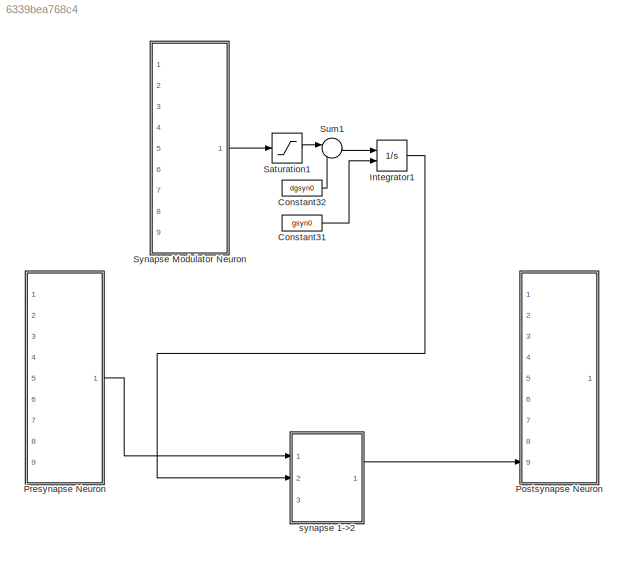
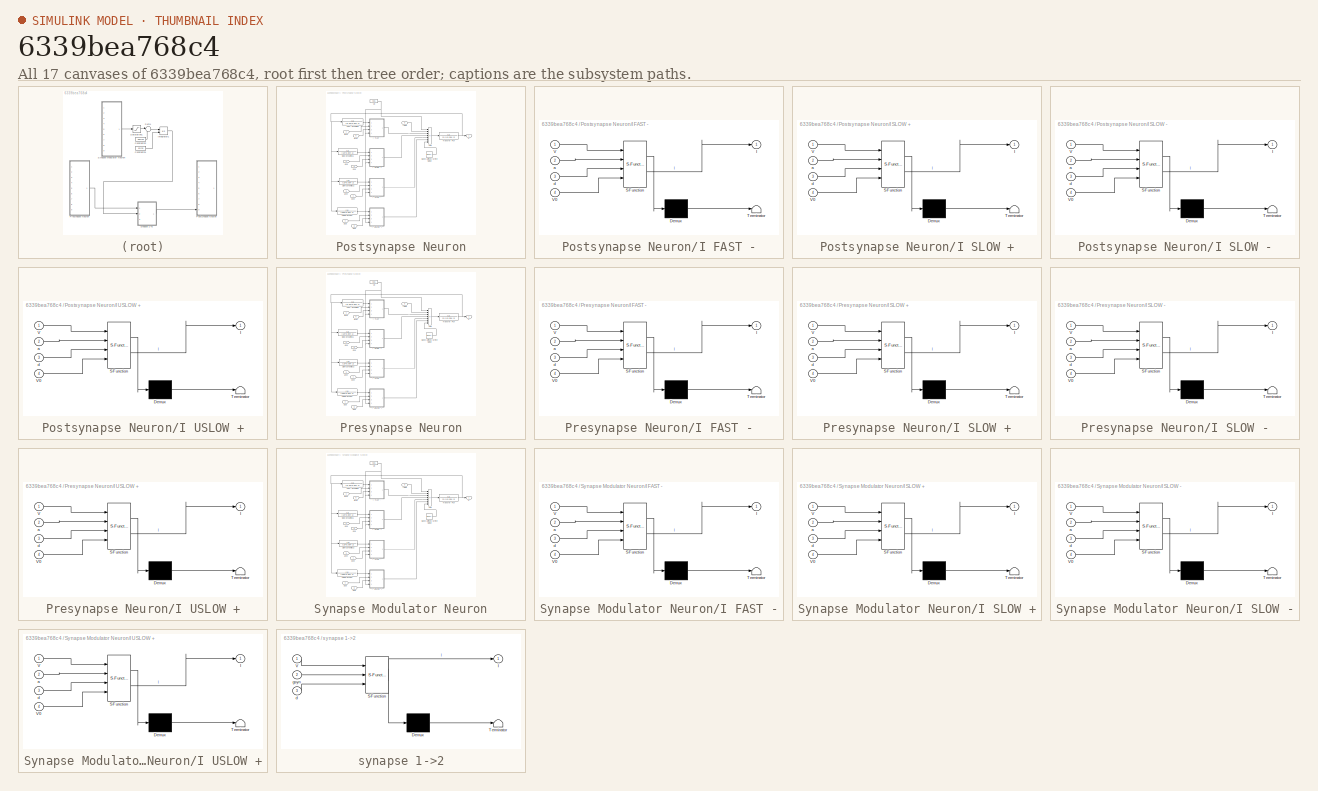
[diagram: thumbnail index - all 17 canvases of the model, root first then tree order]
MODEL slx_6339bea768c4
KIND model
CONFIG AbsTol = auto
CONFIG EnableMultiTasking = off
CONFIG FixedStep = auto
CONFIG MaxStep = auto
CONFIG MinStep = auto
CONFIG RelTol = 1e-3
CONFIG SampleTimeConstraint = Unconstrained
CONFIG SolverName = VariableStepAuto
CONFIG StartTime = 0.0
CONFIG StopTime = 10.0
BLOCK [Constant] Constant31
  Value = gsyn0
BLOCK [Constant] Constant32
  Value = dgsyn0
BLOCK [Integrator] Integrator1
  InitialCondition = gsm0
  InitialConditionSource = external
  Ports = [2, 1]
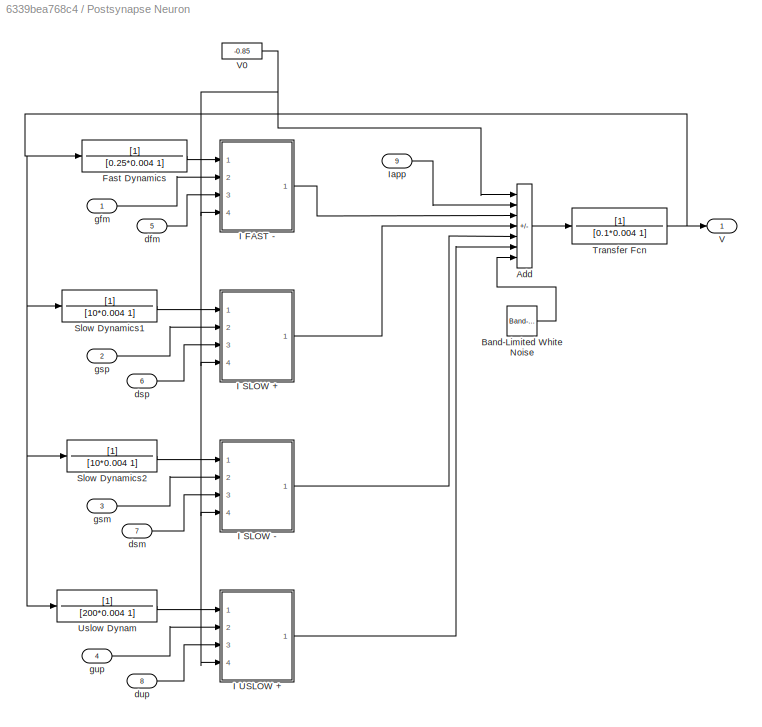
BLOCK [SubSystem] Postsynapse Neuron
  Ports = [9, 1]
  RequestExecContextInheritance = off
BLOCK [Sum] Postsynapse Neuron/Add
  IconShape = rectangular
  Inputs = ++----+
  Ports = [7, 1]
BLOCK [Reference] Postsynapse Neuron/Band-Limited White Noise  REF=simulink/Sources/Band-Limited
White Noise
  Ports = [0, 1]
  SourceBlock = simulink/Sources/Band-Limited\nWhite Noise
  SourceProductBaseCode = SL
  SourceType = Band-Limited White Noise.
BLOCK [TransferFcn] Postsynapse Neuron/Fast Dynamics
  Denominator = [0.25*0.004 1]
BLOCK [SubSystem] Postsynapse Neuron/I FAST -
  ErrorFcn = Stateflow.Translate.translate
  PermitHierarchicalResolution = ExplicitOnly
  Ports = [4, 1]
  RequestExecContextInheritance = off
  SFBlockType = MATLAB Function
  TreatAsAtomicUnit = on
BLOCK [Demux] Postsynapse Neuron/I FAST -/ Demux 
  Outputs = 1
  Ports = [1, 1]
BLOCK [S-Function] Postsynapse Neuron/I FAST -/ SFunction 
  EnableBusSupport = on
  FunctionName = sf_sfun
  PortCounts = [4 2]
  Ports = [4, 2]
  SFcnIsStateOwnerBlock = off
  SFunctionDeploymentMode = off
  Tag = Stateflow S-Function 27
BLOCK [Terminator] Postsynapse Neuron/I FAST -/ Terminator 
BLOCK [Outport] Postsynapse Neuron/I FAST -/I
BLOCK [Inport] Postsynapse Neuron/I FAST -/V
BLOCK [Inport] Postsynapse Neuron/I FAST -/V0
  Port = 4
BLOCK [Inport] Postsynapse Neuron/I FAST -/a
  Port = 2
BLOCK [Inport] Postsynapse Neuron/I FAST -/d
  Port = 3
BLOCK [SubSystem] Postsynapse Neuron/I SLOW +
  ErrorFcn = Stateflow.Translate.translate
  PermitHierarchicalResolution = ExplicitOnly
  Ports = [4, 1]
  RequestExecContextInheritance = off
  SFBlockType = MATLAB Function
  TreatAsAtomicUnit = on
BLOCK [Demux] Postsynapse Neuron/I SLOW +/ Demux 
  Outputs = 1
  Ports = [1, 1]
BLOCK [S-Function] Postsynapse Neuron/I SLOW +/ SFunction 
  EnableBusSupport = on
  FunctionName = sf_sfun
  PortCounts = [4 2]
  Ports = [4, 2]
  SFcnIsStateOwnerBlock = off
  SFunctionDeploymentMode = off
  Tag = Stateflow S-Function 28
BLOCK [Terminator] Postsynapse Neuron/I SLOW +/ Terminator 
BLOCK [Outport] Postsynapse Neuron/I SLOW +/I
BLOCK [Inport] Postsynapse Neuron/I SLOW +/V
BLOCK [Inport] Postsynapse Neuron/I SLOW +/V0
  Port = 4
BLOCK [Inport] Postsynapse Neuron/I SLOW +/a
  Port = 2
BLOCK [Inport] Postsynapse Neuron/I SLOW +/d
  Port = 3
BLOCK [SubSystem] Postsynapse Neuron/I SLOW -
  ErrorFcn = Stateflow.Translate.translate
  PermitHierarchicalResolution = ExplicitOnly
  Ports = [4, 1]
  RequestExecContextInheritance = off
  SFBlockType = MATLAB Function
  TreatAsAtomicUnit = on
BLOCK [Demux] Postsynapse Neuron/I SLOW -/ Demux 
  Outputs = 1
  Ports = [1, 1]
BLOCK [S-Function] Postsynapse Neuron/I SLOW -/ SFunction 
  EnableBusSupport = on
  FunctionName = sf_sfun
  PortCounts = [4 2]
  Ports = [4, 2]
  SFcnIsStateOwnerBlock = off
  SFunctionDeploymentMode = off
  Tag = Stateflow S-Function 29
BLOCK [Terminator] Postsynapse Neuron/I SLOW -/ Terminator 
BLOCK [Outport] Postsynapse Neuron/I SLOW -/I
BLOCK [Inport] Postsynapse Neuron/I SLOW -/V
BLOCK [Inport] Postsynapse Neuron/I SLOW -/V0
  Port = 4
BLOCK [Inport] Postsynapse Neuron/I SLOW -/a
  Port = 2
BLOCK [Inport] Postsynapse Neuron/I SLOW -/d
  Port = 3
BLOCK [SubSystem] Postsynapse Neuron/I USLOW +
  ErrorFcn = Stateflow.Translate.translate
  PermitHierarchicalResolution = ExplicitOnly
  Ports = [4, 1]
  RequestExecContextInheritance = off
  SFBlockType = MATLAB Function
  TreatAsAtomicUnit = on
BLOCK [Demux] Postsynapse Neuron/I USLOW +/ Demux 
  Outputs = 1
  Ports = [1, 1]
BLOCK [S-Function] Postsynapse Neuron/I USLOW +/ SFunction 
  EnableBusSupport = on
  FunctionName = sf_sfun
  PortCounts = [4 2]
  Ports = [4, 2]
  SFcnIsStateOwnerBlock = off
  SFunctionDeploymentMode = off
  Tag = Stateflow S-Function 30
BLOCK [Terminator] Postsynapse Neuron/I USLOW +/ Terminator 
BLOCK [Outport] Postsynapse Neuron/I USLOW +/I
BLOCK [Inport] Postsynapse Neuron/I USLOW +/V
BLOCK [Inport] Postsynapse Neuron/I USLOW +/V0
  Port = 4
BLOCK [Inport] Postsynapse Neuron/I USLOW +/a
  Port = 2
BLOCK [Inport] Postsynapse Neuron/I USLOW +/d
  Port = 3
BLOCK [Inport] Postsynapse Neuron/Iapp
  Port = 9
BLOCK [TransferFcn] Postsynapse Neuron/Slow Dynamics1
  Denominator = [10*0.004 1]
BLOCK [TransferFcn] Postsynapse Neuron/Slow Dynamics2
  Denominator = [10*0.004 1]
BLOCK [TransferFcn] Postsynapse Neuron/Transfer Fcn
  Denominator = [0.1*0.004 1]
BLOCK [TransferFcn] Postsynapse Neuron/Uslow Dynam
  Denominator = [200*0.004 1]
BLOCK [Outport] Postsynapse Neuron/V
BLOCK [Constant] Postsynapse Neuron/V0
  Value = -0.85
BLOCK [Inport] Postsynapse Neuron/dfm
  Port = 5
BLOCK [Inport] Postsynapse Neuron/dsm
  Port = 7
BLOCK [Inport] Postsynapse Neuron/dsp
  Port = 6
BLOCK [Inport] Postsynapse Neuron/dup
  Port = 8
BLOCK [Inport] Postsynapse Neuron/gfm
BLOCK [Inport] Postsynapse Neuron/gsm
  Port = 3
BLOCK [Inport] Postsynapse Neuron/gsp
  Port = 2
BLOCK [Inport] Postsynapse Neuron/gup
  Port = 4
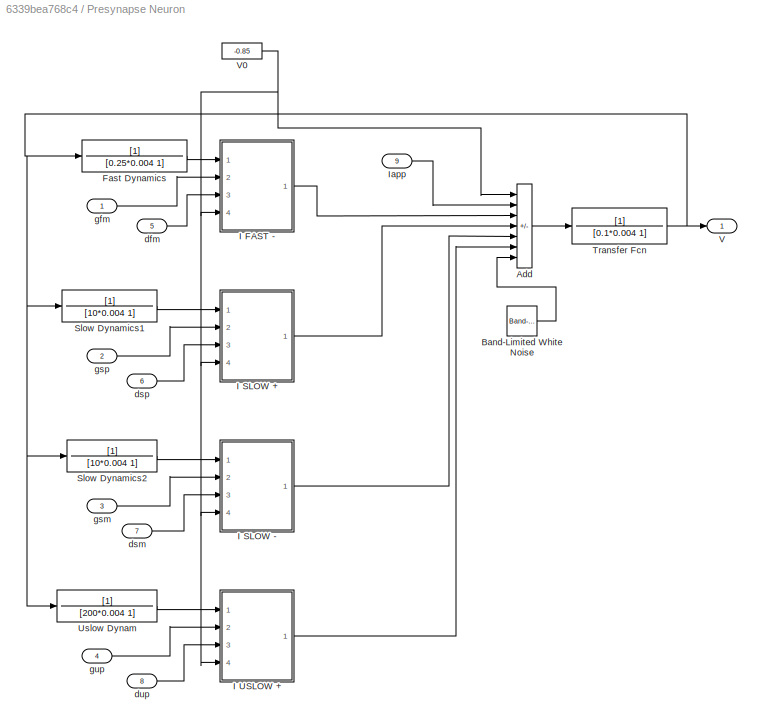
BLOCK [SubSystem] Presynapse Neuron
  Ports = [9, 1]
  RequestExecContextInheritance = off
BLOCK [Sum] Presynapse Neuron/Add
  IconShape = rectangular
  Inputs = ++----+
  Ports = [7, 1]
BLOCK [Reference] Presynapse Neuron/Band-Limited White Noise  REF=simulink/Sources/Band-Limited
White Noise
  Ports = [0, 1]
  SourceBlock = simulink/Sources/Band-Limited\nWhite Noise
  SourceProductBaseCode = SL
  SourceType = Band-Limited White Noise.
BLOCK [TransferFcn] Presynapse Neuron/Fast Dynamics
  Denominator = [0.25*0.004 1]
BLOCK [SubSystem] Presynapse Neuron/I FAST -
  ErrorFcn = Stateflow.Translate.translate
  PermitHierarchicalResolution = ExplicitOnly
  Ports = [4, 1]
  RequestExecContextInheritance = off
  SFBlockType = MATLAB Function
  TreatAsAtomicUnit = on
BLOCK [Demux] Presynapse Neuron/I FAST -/ Demux 
  Outputs = 1
  Ports = [1, 1]
BLOCK [S-Function] Presynapse Neuron/I FAST -/ SFunction 
  EnableBusSupport = on
  FunctionName = sf_sfun
  PortCounts = [4 2]
  Ports = [4, 2]
  SFcnIsStateOwnerBlock = off
  SFunctionDeploymentMode = off
  Tag = Stateflow S-Function 1
BLOCK [Terminator] Presynapse Neuron/I FAST -/ Terminator 
BLOCK [Outport] Presynapse Neuron/I FAST -/I
BLOCK [Inport] Presynapse Neuron/I FAST -/V
BLOCK [Inport] Presynapse Neuron/I FAST -/V0
  Port = 4
BLOCK [Inport] Presynapse Neuron/I FAST -/a
  Port = 2
BLOCK [Inport] Presynapse Neuron/I FAST -/d
  Port = 3
BLOCK [SubSystem] Presynapse Neuron/I SLOW +
  ErrorFcn = Stateflow.Translate.translate
  PermitHierarchicalResolution = ExplicitOnly
  Ports = [4, 1]
  RequestExecContextInheritance = off
  SFBlockType = MATLAB Function
  TreatAsAtomicUnit = on
BLOCK [Demux] Presynapse Neuron/I SLOW +/ Demux 
  Outputs = 1
  Ports = [1, 1]
BLOCK [S-Function] Presynapse Neuron/I SLOW +/ SFunction 
  EnableBusSupport = on
  FunctionName = sf_sfun
  PortCounts = [4 2]
  Ports = [4, 2]
  SFcnIsStateOwnerBlock = off
  SFunctionDeploymentMode = off
  Tag = Stateflow S-Function 2
BLOCK [Terminator] Presynapse Neuron/I SLOW +/ Terminator 
BLOCK [Outport] Presynapse Neuron/I SLOW +/I
BLOCK [Inport] Presynapse Neuron/I SLOW +/V
BLOCK [Inport] Presynapse Neuron/I SLOW +/V0
  Port = 4
BLOCK [Inport] Presynapse Neuron/I SLOW +/a
  Port = 2
BLOCK [Inport] Presynapse Neuron/I SLOW +/d
  Port = 3
BLOCK [SubSystem] Presynapse Neuron/I SLOW -
  ErrorFcn = Stateflow.Translate.translate
  PermitHierarchicalResolution = ExplicitOnly
  Ports = [4, 1]
  RequestExecContextInheritance = off
  SFBlockType = MATLAB Function
  TreatAsAtomicUnit = on
BLOCK [Demux] Presynapse Neuron/I SLOW -/ Demux 
  Outputs = 1
  Ports = [1, 1]
BLOCK [S-Function] Presynapse Neuron/I SLOW -/ SFunction 
  EnableBusSupport = on
  FunctionName = sf_sfun
  PortCounts = [4 2]
  Ports = [4, 2]
  SFcnIsStateOwnerBlock = off
  SFunctionDeploymentMode = off
  Tag = Stateflow S-Function 3
BLOCK [Terminator] Presynapse Neuron/I SLOW -/ Terminator 
BLOCK [Outport] Presynapse Neuron/I SLOW -/I
BLOCK [Inport] Presynapse Neuron/I SLOW -/V
BLOCK [Inport] Presynapse Neuron/I SLOW -/V0
  Port = 4
BLOCK [Inport] Presynapse Neuron/I SLOW -/a
  Port = 2
BLOCK [Inport] Presynapse Neuron/I SLOW -/d
  Port = 3
BLOCK [SubSystem] Presynapse Neuron/I USLOW +
  ErrorFcn = Stateflow.Translate.translate
  PermitHierarchicalResolution = ExplicitOnly
  Ports = [4, 1]
  RequestExecContextInheritance = off
  SFBlockType = MATLAB Function
  TreatAsAtomicUnit = on
BLOCK [Demux] Presynapse Neuron/I USLOW +/ Demux 
  Outputs = 1
  Ports = [1, 1]
BLOCK [S-Function] Presynapse Neuron/I USLOW +/ SFunction 
  EnableBusSupport = on
  FunctionName = sf_sfun
  PortCounts = [4 2]
  Ports = [4, 2]
  SFcnIsStateOwnerBlock = off
  SFunctionDeploymentMode = off
  Tag = Stateflow S-Function 4
BLOCK [Terminator] Presynapse Neuron/I USLOW +/ Terminator 
BLOCK [Outport] Presynapse Neuron/I USLOW +/I
BLOCK [Inport] Presynapse Neuron/I USLOW +/V
BLOCK [Inport] Presynapse Neuron/I USLOW +/V0
  Port = 4
BLOCK [Inport] Presynapse Neuron/I USLOW +/a
  Port = 2
BLOCK [Inport] Presynapse Neuron/I USLOW +/d
  Port = 3
BLOCK [Inport] Presynapse Neuron/Iapp
  Port = 9
BLOCK [TransferFcn] Presynapse Neuron/Slow Dynamics1
  Denominator = [10*0.004 1]
BLOCK [TransferFcn] Presynapse Neuron/Slow Dynamics2
  Denominator = [10*0.004 1]
BLOCK [TransferFcn] Presynapse Neuron/Transfer Fcn
  Denominator = [0.1*0.004 1]
BLOCK [TransferFcn] Presynapse Neuron/Uslow Dynam
  Denominator = [200*0.004 1]
BLOCK [Outport] Presynapse Neuron/V
BLOCK [Constant] Presynapse Neuron/V0
  Value = -0.85
BLOCK [Inport] Presynapse Neuron/dfm
  Port = 5
BLOCK [Inport] Presynapse Neuron/dsm
  Port = 7
BLOCK [Inport] Presynapse Neuron/dsp
  Port = 6
BLOCK [Inport] Presynapse Neuron/dup
  Port = 8
BLOCK [Inport] Presynapse Neuron/gfm
BLOCK [Inport] Presynapse Neuron/gsm
  Port = 3
BLOCK [Inport] Presynapse Neuron/gsp
  Port = 2
BLOCK [Inport] Presynapse Neuron/gup
  Port = 4
BLOCK [Saturate] Saturation1
  LowerLimit = 0
  UpperLimit = 5
BLOCK [Sum] Sum1
  Inputs = |-+
  Ports = [2, 1]
BLOCK [SubSystem] Synapse Modulator Neuron
  Ports = [9, 1]
  RequestExecContextInheritance = off
BLOCK [Sum] Synapse Modulator Neuron/Add
  IconShape = rectangular
  Inputs = ++----+
  Ports = [7, 1]
BLOCK [Reference] Synapse Modulator Neuron/Band-Limited White Noise  REF=simulink/Sources/Band-Limited
White Noise
  Ports = [0, 1]
  SourceBlock = simulink/Sources/Band-Limited\nWhite Noise
  SourceProductBaseCode = SL
  SourceType = Band-Limited White Noise.
BLOCK [TransferFcn] Synapse Modulator Neuron/Fast Dynamics
  Denominator = [0.25*0.004 1]
BLOCK [SubSystem] Synapse Modulator Neuron/I FAST -
  ErrorFcn = Stateflow.Translate.translate
  PermitHierarchicalResolution = ExplicitOnly
  Ports = [4, 1]
  RequestExecContextInheritance = off
  SFBlockType = MATLAB Function
  TreatAsAtomicUnit = on
BLOCK [Demux] Synapse Modulator Neuron/I FAST -/ Demux 
  Outputs = 1
  Ports = [1, 1]
BLOCK [S-Function] Synapse Modulator Neuron/I FAST -/ SFunction 
  EnableBusSupport = on
  FunctionName = sf_sfun
  PortCounts = [4 2]
  Ports = [4, 2]
  SFcnIsStateOwnerBlock = off
  SFunctionDeploymentMode = off
  Tag = Stateflow S-Function 5
BLOCK [Terminator] Synapse Modulator Neuron/I FAST -/ Terminator 
BLOCK [Outport] Synapse Modulator Neuron/I FAST -/I
BLOCK [Inport] Synapse Modulator Neuron/I FAST -/V
BLOCK [Inport] Synapse Modulator Neuron/I FAST -/V0
  Port = 4
BLOCK [Inport] Synapse Modulator Neuron/I FAST -/a
  Port = 2
BLOCK [Inport] Synapse Modulator Neuron/I FAST -/d
  Port = 3
BLOCK [SubSystem] Synapse Modulator Neuron/I SLOW +
  ErrorFcn = Stateflow.Translate.translate
  PermitHierarchicalResolution = ExplicitOnly
  Ports = [4, 1]
  RequestExecContextInheritance = off
  SFBlockType = MATLAB Function
  TreatAsAtomicUnit = on
BLOCK [Demux] Synapse Modulator Neuron/I SLOW +/ Demux 
  Outputs = 1
  Ports = [1, 1]
BLOCK [S-Function] Synapse Modulator Neuron/I SLOW +/ SFunction 
  EnableBusSupport = on
  FunctionName = sf_sfun
  PortCounts = [4 2]
  Ports = [4, 2]
  SFcnIsStateOwnerBlock = off
  SFunctionDeploymentMode = off
  Tag = Stateflow S-Function 6
BLOCK [Terminator] Synapse Modulator Neuron/I SLOW +/ Terminator 
BLOCK [Outport] Synapse Modulator Neuron/I SLOW +/I
BLOCK [Inport] Synapse Modulator Neuron/I SLOW +/V
BLOCK [Inport] Synapse Modulator Neuron/I SLOW +/V0
  Port = 4
BLOCK [Inport] Synapse Modulator Neuron/I SLOW +/a
  Port = 2
BLOCK [Inport] Synapse Modulator Neuron/I SLOW +/d
  Port = 3
BLOCK [SubSystem] Synapse Modulator Neuron/I SLOW -
  ErrorFcn = Stateflow.Translate.translate
  PermitHierarchicalResolution = ExplicitOnly
  Ports = [4, 1]
  RequestExecContextInheritance = off
  SFBlockType = MATLAB Function
  TreatAsAtomicUnit = on
BLOCK [Demux] Synapse Modulator Neuron/I SLOW -/ Demux 
  Outputs = 1
  Ports = [1, 1]
BLOCK [S-Function] Synapse Modulator Neuron/I SLOW -/ SFunction 
  EnableBusSupport = on
  FunctionName = sf_sfun
  PortCounts = [4 2]
  Ports = [4, 2]
  SFcnIsStateOwnerBlock = off
  SFunctionDeploymentMode = off
  Tag = Stateflow S-Function 7
BLOCK [Terminator] Synapse Modulator Neuron/I SLOW -/ Terminator 
BLOCK [Outport] Synapse Modulator Neuron/I SLOW -/I
BLOCK [Inport] Synapse Modulator Neuron/I SLOW -/V
BLOCK [Inport] Synapse Modulator Neuron/I SLOW -/V0
  Port = 4
BLOCK [Inport] Synapse Modulator Neuron/I SLOW -/a
  Port = 2
BLOCK [Inport] Synapse Modulator Neuron/I SLOW -/d
  Port = 3
BLOCK [SubSystem] Synapse Modulator Neuron/I USLOW +
  ErrorFcn = Stateflow.Translate.translate
  PermitHierarchicalResolution = ExplicitOnly
  Ports = [4, 1]
  RequestExecContextInheritance = off
  SFBlockType = MATLAB Function
  TreatAsAtomicUnit = on
BLOCK [Demux] Synapse Modulator Neuron/I USLOW +/ Demux 
  Outputs = 1
  Ports = [1, 1]
BLOCK [S-Function] Synapse Modulator Neuron/I USLOW +/ SFunction 
  EnableBusSupport = on
  FunctionName = sf_sfun
  PortCounts = [4 2]
  Ports = [4, 2]
  SFcnIsStateOwnerBlock = off
  SFunctionDeploymentMode = off
  Tag = Stateflow S-Function 8
BLOCK [Terminator] Synapse Modulator Neuron/I USLOW +/ Terminator 
BLOCK [Outport] Synapse Modulator Neuron/I USLOW +/I
BLOCK [Inport] Synapse Modulator Neuron/I USLOW +/V
BLOCK [Inport] Synapse Modulator Neuron/I USLOW +/V0
  Port = 4
BLOCK [Inport] Synapse Modulator Neuron/I USLOW +/a
  Port = 2
BLOCK [Inport] Synapse Modulator Neuron/I USLOW +/d
  Port = 3
BLOCK [Inport] Synapse Modulator Neuron/Iapp
  Port = 9
BLOCK [TransferFcn] Synapse Modulator Neuron/Slow Dynamics1
  Denominator = [10*0.004 1]
BLOCK [TransferFcn] Synapse Modulator Neuron/Slow Dynamics2
  Denominator = [10*0.004 1]
BLOCK [TransferFcn] Synapse Modulator Neuron/Transfer Fcn
  Denominator = [0.1*0.004 1]
BLOCK [TransferFcn] Synapse Modulator Neuron/Uslow Dynam
  Denominator = [200*0.004 1]
BLOCK [Outport] Synapse Modulator Neuron/V
BLOCK [Constant] Synapse Modulator Neuron/V0
  Value = -0.85
BLOCK [Inport] Synapse Modulator Neuron/dfm
  Port = 5
BLOCK [Inport] Synapse Modulator Neuron/dsm
  Port = 7
BLOCK [Inport] Synapse Modulator Neuron/dsp
  Port = 6
BLOCK [Inport] Synapse Modulator Neuron/dup
  Port = 8
BLOCK [Inport] Synapse Modulator Neuron/gfm
BLOCK [Inport] Synapse Modulator Neuron/gsm
  Port = 3
BLOCK [Inport] Synapse Modulator Neuron/gsp
  Port = 2
BLOCK [Inport] Synapse Modulator Neuron/gup
  Port = 4
BLOCK [SubSystem] synapse 1->2
  ErrorFcn = Stateflow.Translate.translate
  PermitHierarchicalResolution = ExplicitOnly
  Ports = [3, 1]
  RequestExecContextInheritance = off
  SFBlockType = MATLAB Function
  TreatAsAtomicUnit = on
BLOCK [Demux] synapse 1->2/ Demux 
  Outputs = 1
  Ports = [1, 1]
BLOCK [S-Function] synapse 1->2/ SFunction 
  EnableBusSupport = on
  FunctionName = sf_sfun
  PortCounts = [3 2]
  Ports = [3, 2]
  SFcnIsStateOwnerBlock = off
  SFunctionDeploymentMode = off
  Tag = Stateflow S-Function 13
BLOCK [Terminator] synapse 1->2/ Terminator 
BLOCK [Outport] synapse 1->2/I
BLOCK [Inport] synapse 1->2/V
BLOCK [Inport] synapse 1->2/d
  Port = 3
BLOCK [Inport] synapse 1->2/gsyn
  Port = 2
LINE Constant31:1 -> Integrator1:2
LINE Constant32:1 -> Sum1:2
LINE Integrator1:1 -> synapse 1->2:2
LINE Postsynapse Neuron/Add:1 -> Postsynapse Neuron/Transfer Fcn:1
LINE Postsynapse Neuron/Band-Limited White Noise:1 -> Postsynapse Neuron/Add:7
LINE Postsynapse Neuron/Fast Dynamics:1 -> Postsynapse Neuron/I FAST -:1
LINE Postsynapse Neuron/I FAST -:1 -> Postsynapse Neuron/Add:3
LINE Postsynapse Neuron/I SLOW +:1 -> Postsynapse Neuron/Add:4
LINE Postsynapse Neuron/I SLOW -:1 -> Postsynapse Neuron/Add:5
LINE Postsynapse Neuron/I USLOW +:1 -> Postsynapse Neuron/Add:6
LINE Postsynapse Neuron/Iapp:1 -> Postsynapse Neuron/Add:2
LINE Postsynapse Neuron/Slow Dynamics1:1 -> Postsynapse Neuron/I SLOW +:1
LINE Postsynapse Neuron/Slow Dynamics2:1 -> Postsynapse Neuron/I SLOW -:1
NET Postsynapse Neuron/Transfer Fcn:1 -> Postsynapse Neuron/Fast Dynamics:1, Postsynapse Neuron/Slow Dynamics1:1, Postsynapse Neuron/Slow Dynamics2:1, Postsynapse Neuron/Uslow Dynam:1, Postsynapse Neuron/V:1
LINE Postsynapse Neuron/Uslow Dynam:1 -> Postsynapse Neuron/I USLOW +:1
NET Postsynapse Neuron/V0:1 -> Postsynapse Neuron/Add:1, Postsynapse Neuron/I FAST -:4, Postsynapse Neuron/I SLOW +:4, Postsynapse Neuron/I SLOW -:4, Postsynapse Neuron/I USLOW +:4
LINE Postsynapse Neuron/dfm:1 -> Postsynapse Neuron/I FAST -:3
LINE Postsynapse Neuron/dsm:1 -> Postsynapse Neuron/I SLOW -:3
LINE Postsynapse Neuron/dsp:1 -> Postsynapse Neuron/I SLOW +:3
LINE Postsynapse Neuron/dup:1 -> Postsynapse Neuron/I USLOW +:3
LINE Postsynapse Neuron/gfm:1 -> Postsynapse Neuron/I FAST -:2
LINE Postsynapse Neuron/gsm:1 -> Postsynapse Neuron/I SLOW -:2
LINE Postsynapse Neuron/gsp:1 -> Postsynapse Neuron/I SLOW +:2
LINE Postsynapse Neuron/gup:1 -> Postsynapse Neuron/I USLOW +:2
LINE Presynapse Neuron/Add:1 -> Presynapse Neuron/Transfer Fcn:1
LINE Presynapse Neuron/Band-Limited White Noise:1 -> Presynapse Neuron/Add:7
LINE Presynapse Neuron/Fast Dynamics:1 -> Presynapse Neuron/I FAST -:1
LINE Presynapse Neuron/I FAST -:1 -> Presynapse Neuron/Add:3
LINE Presynapse Neuron/I SLOW +:1 -> Presynapse Neuron/Add:4
LINE Presynapse Neuron/I SLOW -:1 -> Presynapse Neuron/Add:5
LINE Presynapse Neuron/I USLOW +:1 -> Presynapse Neuron/Add:6
LINE Presynapse Neuron/Iapp:1 -> Presynapse Neuron/Add:2
LINE Presynapse Neuron/Slow Dynamics1:1 -> Presynapse Neuron/I SLOW +:1
LINE Presynapse Neuron/Slow Dynamics2:1 -> Presynapse Neuron/I SLOW -:1
NET Presynapse Neuron/Transfer Fcn:1 -> Presynapse Neuron/Fast Dynamics:1, Presynapse Neuron/Slow Dynamics1:1, Presynapse Neuron/Slow Dynamics2:1, Presynapse Neuron/Uslow Dynam:1, Presynapse Neuron/V:1
LINE Presynapse Neuron/Uslow Dynam:1 -> Presynapse Neuron/I USLOW +:1
NET Presynapse Neuron/V0:1 -> Presynapse Neuron/Add:1, Presynapse Neuron/I FAST -:4, Presynapse Neuron/I SLOW +:4, Presynapse Neuron/I SLOW -:4, Presynapse Neuron/I USLOW +:4
LINE Presynapse Neuron/dfm:1 -> Presynapse Neuron/I FAST -:3
LINE Presynapse Neuron/dsm:1 -> Presynapse Neuron/I SLOW -:3
LINE Presynapse Neuron/dsp:1 -> Presynapse Neuron/I SLOW +:3
LINE Presynapse Neuron/dup:1 -> Presynapse Neuron/I USLOW +:3
LINE Presynapse Neuron/gfm:1 -> Presynapse Neuron/I FAST -:2
LINE Presynapse Neuron/gsm:1 -> Presynapse Neuron/I SLOW -:2
LINE Presynapse Neuron/gsp:1 -> Presynapse Neuron/I SLOW +:2
LINE Presynapse Neuron/gup:1 -> Presynapse Neuron/I USLOW +:2
LINE Presynapse Neuron:1 -> synapse 1->2:1
LINE Saturation1:1 -> Sum1:1
LINE Sum1:1 -> Integrator1:1
LINE Synapse Modulator Neuron/Add:1 -> Synapse Modulator Neuron/Transfer Fcn:1
LINE Synapse Modulator Neuron/Band-Limited White Noise:1 -> Synapse Modulator Neuron/Add:7
LINE Synapse Modulator Neuron/Fast Dynamics:1 -> Synapse Modulator Neuron/I FAST -:1
LINE Synapse Modulator Neuron/I FAST -:1 -> Synapse Modulator Neuron/Add:3
LINE Synapse Modulator Neuron/I SLOW +:1 -> Synapse Modulator Neuron/Add:4
LINE Synapse Modulator Neuron/I SLOW -:1 -> Synapse Modulator Neuron/Add:5
LINE Synapse Modulator Neuron/I USLOW +:1 -> Synapse Modulator Neuron/Add:6
LINE Synapse Modulator Neuron/Iapp:1 -> Synapse Modulator Neuron/Add:2
LINE Synapse Modulator Neuron/Slow Dynamics1:1 -> Synapse Modulator Neuron/I SLOW +:1
LINE Synapse Modulator Neuron/Slow Dynamics2:1 -> Synapse Modulator Neuron/I SLOW -:1
NET Synapse Modulator Neuron/Transfer Fcn:1 -> Synapse Modulator Neuron/Fast Dynamics:1, Synapse Modulator Neuron/Slow Dynamics1:1, Synapse Modulator Neuron/Slow Dynamics2:1, Synapse Modulator Neuron/Uslow Dynam:1, Synapse Modulator Neuron/V:1
LINE Synapse Modulator Neuron/Uslow Dynam:1 -> Synapse Modulator Neuron/I USLOW +:1
NET Synapse Modulator Neuron/V0:1 -> Synapse Modulator Neuron/Add:1, Synapse Modulator Neuron/I FAST -:4, Synapse Modulator Neuron/I SLOW +:4, Synapse Modulator Neuron/I SLOW -:4, Synapse Modulator Neuron/I USLOW +:4
LINE Synapse Modulator Neuron/dfm:1 -> Synapse Modulator Neuron/I FAST -:3
LINE Synapse Modulator Neuron/dsm:1 -> Synapse Modulator Neuron/I SLOW -:3
LINE Synapse Modulator Neuron/dsp:1 -> Synapse Modulator Neuron/I SLOW +:3
LINE Synapse Modulator Neuron/dup:1 -> Synapse Modulator Neuron/I USLOW +:3
LINE Synapse Modulator Neuron/gfm:1 -> Synapse Modulator Neuron/I FAST -:2
LINE Synapse Modulator Neuron/gsm:1 -> Synapse Modulator Neuron/I SLOW -:2
LINE Synapse Modulator Neuron/gsp:1 -> Synapse Modulator Neuron/I SLOW +:2
LINE Synapse Modulator Neuron/gup:1 -> Synapse Modulator Neuron/I USLOW +:2
LINE Synapse Modulator Neuron:1 -> Saturation1:1
LINE synapse 1->2:1 -> Postsynapse Neuron:9
note: NET lines group one-source signal fan-out (src -> all destinations, sorted); 1:1 wires keep LINE
CHART Presynapse Neuron/I FAST - states=1 transitions=1
  STATE_LABEL 'eML_blk_kernel()'
  STATE_LABEL 'SCRIPT:\nfunction I = fcn(V,a,d,V0)\n\nI = a*(tanh(V-d)-tanh(V0-d));\n'
CHART Postsynapse Neuron/I SLOW + states=1 transitions=1
  STATE_LABEL 'eML_blk_kernel()'
  STATE_LABEL 'SCRIPT:\nfunction I = fcn(V,a,d,V0)\n\nI = a*(tanh(V-d)-tanh(V0-d));\n'
CHART Postsynapse Neuron/I SLOW - states=1 transitions=1
  STATE_LABEL 'eML_blk_kernel()'
  STATE_LABEL 'SCRIPT:\nfunction I = fcn(V,a,d,V0)\n\nI = a*(tanh(V-d)-tanh(V0-d));\n'
CHART Postsynapse Neuron/I USLOW + states=1 transitions=1
  STATE_LABEL 'eML_blk_kernel()'
  STATE_LABEL 'SCRIPT:\nfunction I = fcn(V,a,d,V0)\n\nI = a*(tanh(V-d)-tanh(V0-d));\n'
CHART Presynapse Neuron/I SLOW + states=1 transitions=1
  STATE_LABEL 'eML_blk_kernel()'
  STATE_LABEL 'SCRIPT:\nfunction I = fcn(V,a,d,V0)\n\nI = a*(tanh(V-d)-tanh(V0-d));\n'
CHART Presynapse Neuron/I SLOW - states=1 transitions=1
  STATE_LABEL 'eML_blk_kernel()'
  STATE_LABEL 'SCRIPT:\nfunction I = fcn(V,a,d,V0)\n\nI = a*(tanh(V-d)-tanh(V0-d));\n'
CHART Presynapse Neuron/I USLOW + states=1 transitions=1
  STATE_LABEL 'eML_blk_kernel()'
  STATE_LABEL 'SCRIPT:\nfunction I = fcn(V,a,d,V0)\n\nI = a*(tanh(V-d)-tanh(V0-d));\n'
CHART Synapse Modulator Neuron/I FAST - states=1 transitions=1
  STATE_LABEL 'eML_blk_kernel()'
  STATE_LABEL 'SCRIPT:\nfunction I = fcn(V,a,d,V0)\n\nI = a*(tanh(V-d)-tanh(V0-d));\n'
CHART Synapse Modulator Neuron/I SLOW + states=1 transitions=1
  STATE_LABEL 'eML_blk_kernel()'
  STATE_LABEL 'SCRIPT:\nfunction I = fcn(V,a,d,V0)\n\nI = a*(tanh(V-d)-tanh(V0-d));\n'
CHART Synapse Modulator Neuron/I SLOW - states=1 transitions=1
  STATE_LABEL 'eML_blk_kernel()'
  STATE_LABEL 'SCRIPT:\nfunction I = fcn(V,a,d,V0)\n\nI = a*(tanh(V-d)-tanh(V0-d));\n'
CHART Synapse Modulator Neuron/I USLOW + states=1 transitions=1
  STATE_LABEL 'eML_blk_kernel()'
  STATE_LABEL 'SCRIPT:\nfunction I = fcn(V,a,d,V0)\n\nI = a*(tanh(V-d)-tanh(V0-d));\n'
CHART synapse 1->2 states=1 transitions=1
  STATE_LABEL 'eML_blk_kernel()'
  STATE_LABEL 'SCRIPT:\nfunction I = fcn(V,gsyn,d)\n\nI = gsyn*(tanh(2*(V-d))+1)/2;\n'
CHART Postsynapse Neuron/I FAST - states=1 transitions=1
  STATE_LABEL 'eML_blk_kernel()'
  STATE_LABEL 'SCRIPT:\nfunction I = fcn(V,a,d,V0)\n\nI = a*(tanh(V-d)-tanh(V0-d));\n'
CHART  states=0 transitions=0
CHART  states=0 transitions=0
CHART  states=0 transitions=0
CHART  states=0 transitions=0
CHART  states=0 transitions=0
CHART  states=0 transitions=0
CHART  states=0 transitions=0
CHART  states=0 transitions=0
CHART  states=0 transitions=0
CHART  states=0 transitions=0
CHART  states=0 transitions=0
CHART  states=0 transitions=0
CHART  states=0 transitions=0
